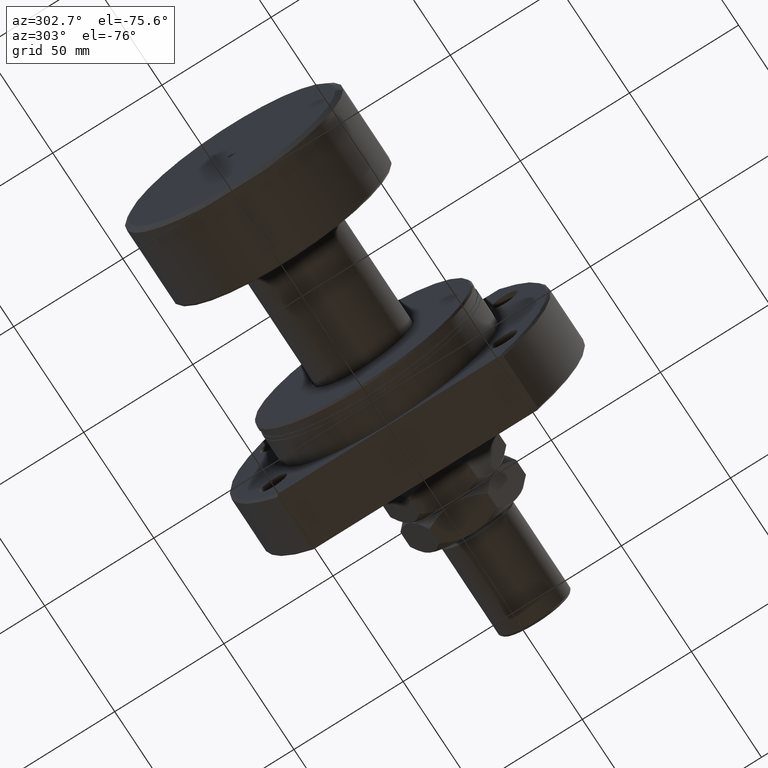
[diagram: clean part render]
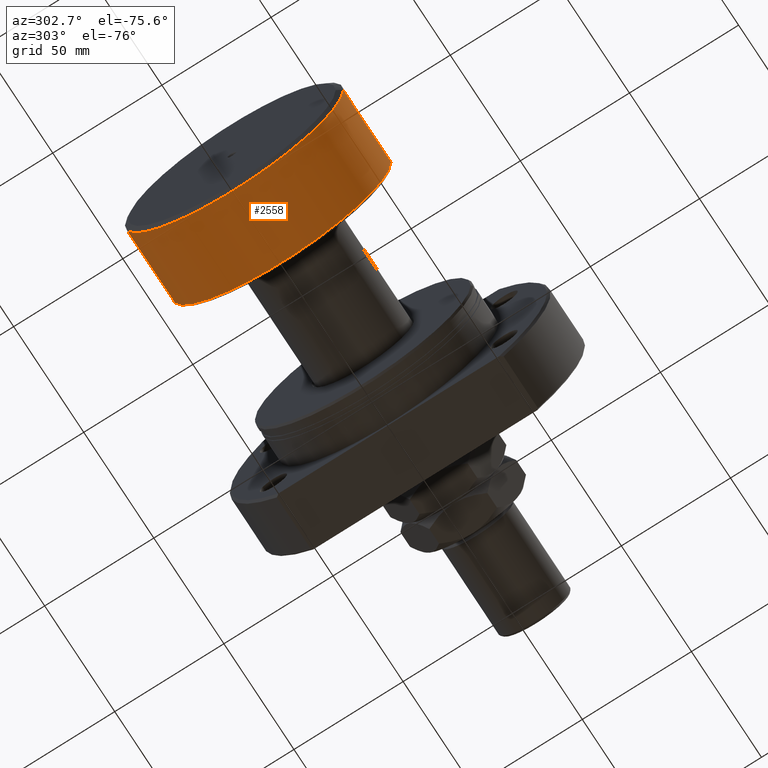
[diagram: same view with one face highlighted and labeled with its STEP entity id]
A machine part, auxiliary view. The second image highlights one B-rep face of the part: STEP entity #2558.
In plain terms, the highlighted cylindrical surface (partial cylindrical patch) has radius 50 mm, axis along (-1, -0, -0).
Its self-contained STEP definition (entity closure, byte-faithful):
#53 = DIRECTION ( 'NONE',  ( 0.000000000000000000, -1.000000000000000000, 0.000000000000000000 ) ) ;
#246 = AXIS2_PLACEMENT_3D ( 'NONE', #2542, #1879, #53 ) ;
#310 = VECTOR ( 'NONE', #1847, 1000.000000000000000 ) ;
#713 = CARTESIAN_POINT ( 'NONE',  ( 35.70000000000000284, -50.00000000000000000, 0.000000000000000000 ) ) ;
#1185 = ORIENTED_EDGE ( 'NONE', *, *, #3978, .T. ) ;
#1223 = DIRECTION ( 'NONE',  ( 8.673617379884035472E-18, -1.000000000000000000, 0.000000000000000000 ) ) ;
#1235 = AXIS2_PLACEMENT_3D ( 'NONE', #4387, #4364, #3634 ) ;
#1252 = AXIS2_PLACEMENT_3D ( 'NONE', #1498, #3006, #1223 ) ;
#1498 = CARTESIAN_POINT ( 'NONE',  ( 1.500000000000005995, 1.604313483103604941E-17, 0.000000000000000000 ) ) ;
#1579 = LINE ( 'NONE', #3847, #4018 ) ;
#1741 = EDGE_LOOP ( 'NONE', ( #2537, #4427, #1185, #1802 ) ) ;
#1802 = ORIENTED_EDGE ( 'NONE', *, *, #3163, .F. ) ;
#1847 = DIRECTION ( 'NONE',  ( -1.000000000000000000, -1.069542322069065801E-17, -0.000000000000000000 ) ) ;
#1879 = DIRECTION ( 'NONE',  ( -1.000000000000000000, -1.069542322069065801E-17, -0.000000000000000000 ) ) ;
#1992 = VERTEX_POINT ( 'NONE', #4317 ) ;
#2279 = CARTESIAN_POINT ( 'NONE',  ( 1.500000000000005551, 50.00000000000000000, 0.000000000000000000 ) ) ;
#2537 = ORIENTED_EDGE ( 'NONE', *, *, #4023, .F. ) ;
#2542 = CARTESIAN_POINT ( 'NONE',  ( 35.70000000000000284, 3.818266089786565135E-16, 0.000000000000000000 ) ) ;
#2558 = ADVANCED_FACE ( 'NONE', ( #3581 ), #3186, .T. ) ;
#3006 = DIRECTION ( 'NONE',  ( -1.000000000000000000, -1.069542322069065801E-17, -0.000000000000000000 ) ) ;
#3130 = VERTEX_POINT ( 'NONE', #2279 ) ;
#3148 = VERTEX_POINT ( 'NONE', #713 ) ;
#3163 = EDGE_CURVE ( 'NONE', #3130, #3806, #4479, .T. ) ;
#3186 = CYLINDRICAL_SURFACE ( 'NONE', #1235, 50.00000000000000000 ) ;
#3543 = CIRCLE ( 'NONE', #246, 50.00000000000000000 ) ;
#3581 = FACE_OUTER_BOUND ( 'NONE', #1741, .T. ) ;
#3634 = DIRECTION ( 'NONE',  ( 1.069542322069065955E-17, -1.000000000000000000, 0.000000000000000000 ) ) ;
#3747 = CARTESIAN_POINT ( 'NONE',  ( 5.347711610345329959E-16, -50.00000000000000000, 0.000000000000000000 ) ) ;
#3806 = VERTEX_POINT ( 'NONE', #4391 ) ;
#3847 = CARTESIAN_POINT ( 'NONE',  ( -5.347711610345329959E-16, 50.00000000000000000, 6.123233995736766085E-15 ) ) ;
#3978 = EDGE_CURVE ( 'NONE', #3148, #3806, #4477, .T. ) ;
#4018 = VECTOR ( 'NONE', #4625, 1000.000000000000000 ) ;
#4023 = EDGE_CURVE ( 'NONE', #1992, #3130, #1579, .T. ) ;
#4317 = CARTESIAN_POINT ( 'NONE',  ( 35.70000000000000284, 50.00000000000000000, 6.123233995736766085E-15 ) ) ;
#4364 = DIRECTION ( 'NONE',  ( -1.000000000000000000, -1.069542322069065801E-17, -0.000000000000000000 ) ) ;
#4387 = CARTESIAN_POINT ( 'NONE',  ( 0.000000000000000000, 0.000000000000000000, 0.000000000000000000 ) ) ;
#4391 = CARTESIAN_POINT ( 'NONE',  ( 1.500000000000006217, -50.00000000000000000, 6.123233995736766085E-15 ) ) ;
#4427 = ORIENTED_EDGE ( 'NONE', *, *, #4886, .T. ) ;
#4477 = LINE ( 'NONE', #3747, #310 ) ;
#4479 = CIRCLE ( 'NONE', #1252, 50.00000000000000000 ) ;
#4625 = DIRECTION ( 'NONE',  ( -1.000000000000000000, -1.069542322069065801E-17, -0.000000000000000000 ) ) ;
#4886 = EDGE_CURVE ( 'NONE', #1992, #3148, #3543, .T. ) ;